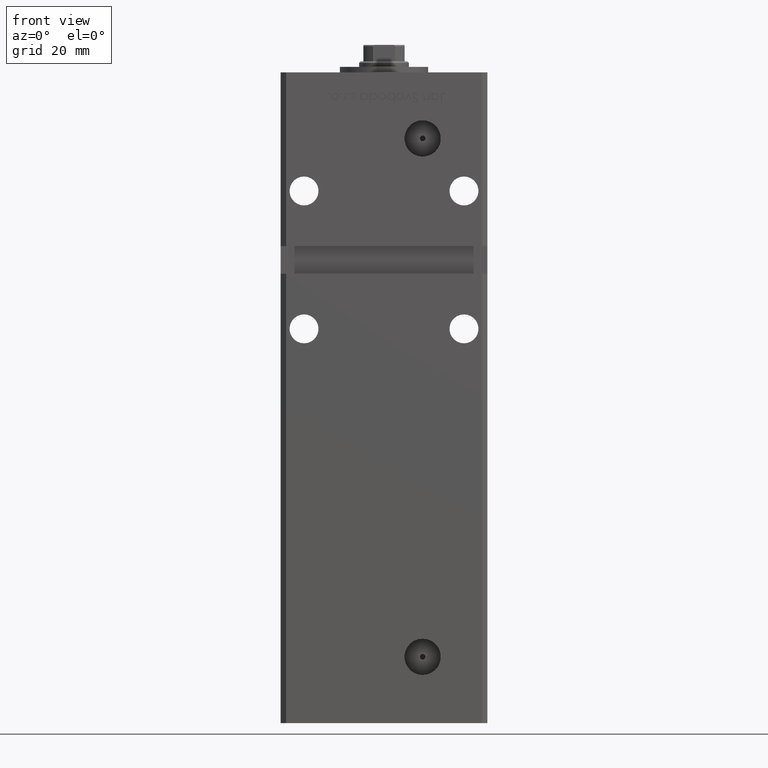
[diagram: clean part render]
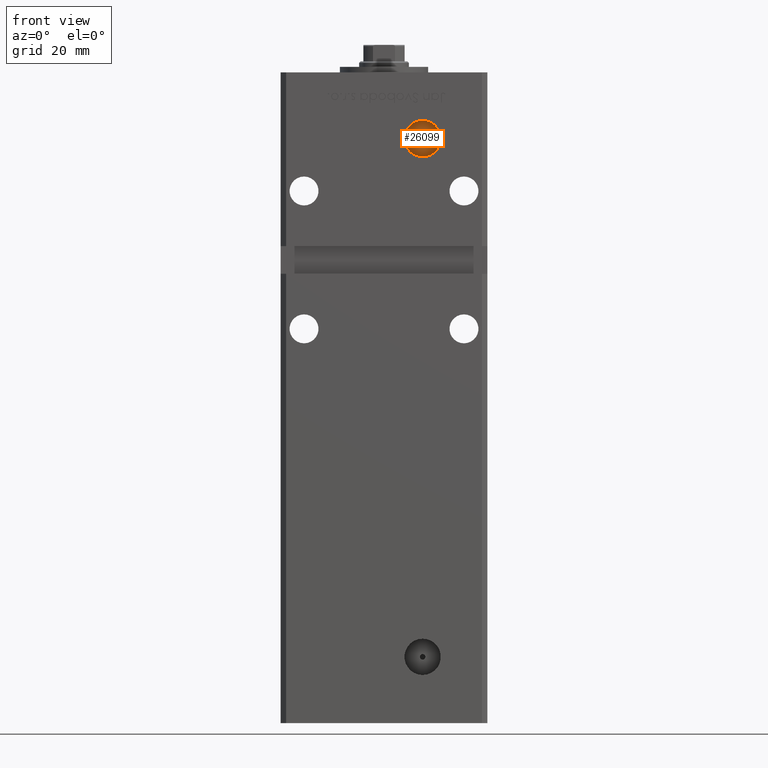
[diagram: same view with one face highlighted and labeled with its STEP entity id]
A machine part, front view. The second image highlights one B-rep face of the part: STEP entity #26099.
In plain terms, the highlighted planar face has unit normal (0, -1, 0).
Its self-contained STEP definition (entity closure, byte-faithful):
#190 = DIRECTION ( 'NONE',  ( 0.000000000000000000, -1.000000000000000000, 0.000000000000000000 ) ) ;
#3532 = EDGE_CURVE ( 'NONE', #34479, #21254, #49958, .T. ) ;
#5701 = FACE_BOUND ( 'NONE', #48518, .T. ) ;
#5962 = CARTESIAN_POINT ( 'NONE',  ( 0.000000000000000000, -19.50000000000000355, 0.000000000000000000 ) ) ;
#9230 = ORIENTED_EDGE ( 'NONE', *, *, #3532, .F. ) ;
#9786 = EDGE_CURVE ( 'NONE', #26175, #23787, #40543, .T. ) ;
#10392 = CARTESIAN_POINT ( 'NONE',  ( 13.99999999999996980, -19.50000000000000355, 197.0000000000000000 ) ) ;
#11334 = AXIS2_PLACEMENT_3D ( 'NONE', #10392, #22211, #35104 ) ;
#13206 = DIRECTION ( 'NONE',  ( -0.000000000000000000, 1.000000000000000000, -0.000000000000000000 ) ) ;
#13733 = CARTESIAN_POINT ( 'NONE',  ( 13.99999999999996980, -19.50000000000000355, 197.0000000000000000 ) ) ;
#15233 = AXIS2_PLACEMENT_3D ( 'NONE', #13733, #13206, #29576 ) ;
#18014 = CIRCLE ( 'NONE', #37744, 1.000000000000000888 ) ;
#19863 = ORIENTED_EDGE ( 'NONE', *, *, #32523, .F. ) ;
#20631 = DIRECTION ( 'NONE',  ( 0.000000000000000000, 0.000000000000000000, -1.000000000000000000 ) ) ;
#21254 = VERTEX_POINT ( 'NONE', #47543 ) ;
#22211 = DIRECTION ( 'NONE',  ( -0.000000000000000000, 1.000000000000000000, -0.000000000000000000 ) ) ;
#23338 = CARTESIAN_POINT ( 'NONE',  ( 13.99999999999996980, -19.50000000000000355, 203.5800000000000125 ) ) ;
#23787 = VERTEX_POINT ( 'NONE', #40925 ) ;
#26099 = ADVANCED_FACE ( 'NONE', ( #5701, #46565 ), #30404, .T. ) ;
#26175 = VERTEX_POINT ( 'NONE', #39277 ) ;
#28489 = AXIS2_PLACEMENT_3D ( 'NONE', #28945, #190, #20631 ) ;
#28945 = CARTESIAN_POINT ( 'NONE',  ( 13.99999999999996980, -19.50000000000000355, 197.0000000000000000 ) ) ;
#29576 = DIRECTION ( 'NONE',  ( 0.000000000000000000, 0.000000000000000000, -1.000000000000000000 ) ) ;
#30404 = PLANE ( 'NONE',  #46069 ) ;
#31953 = DIRECTION ( 'NONE',  ( 0.000000000000000000, 0.000000000000000000, -1.000000000000000000 ) ) ;
#32216 = DIRECTION ( 'NONE',  ( 0.000000000000000000, -1.000000000000000000, 0.000000000000000000 ) ) ;
#32523 = EDGE_CURVE ( 'NONE', #21254, #34479, #38374, .T. ) ;
#33525 = EDGE_LOOP ( 'NONE', ( #19863, #9230 ) ) ;
#33748 = ORIENTED_EDGE ( 'NONE', *, *, #40466, .F. ) ;
#34479 = VERTEX_POINT ( 'NONE', #23338 ) ;
#35104 = DIRECTION ( 'NONE',  ( 0.000000000000000000, 0.000000000000000000, -1.000000000000000000 ) ) ;
#37744 = AXIS2_PLACEMENT_3D ( 'NONE', #45122, #32216, #31953 ) ;
#38374 = CIRCLE ( 'NONE', #15233, 6.580000000000002736 ) ;
#39277 = CARTESIAN_POINT ( 'NONE',  ( 13.99999999999996980, -19.50000000000000355, 198.0000000000000000 ) ) ;
#40466 = EDGE_CURVE ( 'NONE', #23787, #26175, #18014, .T. ) ;
#40543 = CIRCLE ( 'NONE', #28489, 1.000000000000000888 ) ;
#40925 = CARTESIAN_POINT ( 'NONE',  ( 13.99999999999996980, -19.50000000000000355, 196.0000000000000000 ) ) ;
#42253 = DIRECTION ( 'NONE',  ( 0.000000000000000000, -0.000000000000000000, -1.000000000000000000 ) ) ;
#45122 = CARTESIAN_POINT ( 'NONE',  ( 13.99999999999996980, -19.50000000000000355, 197.0000000000000000 ) ) ;
#46069 = AXIS2_PLACEMENT_3D ( 'NONE', #5962, #46830, #42253 ) ;
#46565 = FACE_OUTER_BOUND ( 'NONE', #33525, .T. ) ;
#46830 = DIRECTION ( 'NONE',  ( 0.000000000000000000, -1.000000000000000000, 0.000000000000000000 ) ) ;
#47543 = CARTESIAN_POINT ( 'NONE',  ( 13.99999999999996980, -19.50000000000000355, 190.4200000000000159 ) ) ;
#48518 = EDGE_LOOP ( 'NONE', ( #33748, #53140 ) ) ;
#49958 = CIRCLE ( 'NONE', #11334, 6.580000000000002736 ) ;
#53140 = ORIENTED_EDGE ( 'NONE', *, *, #9786, .F. ) ;